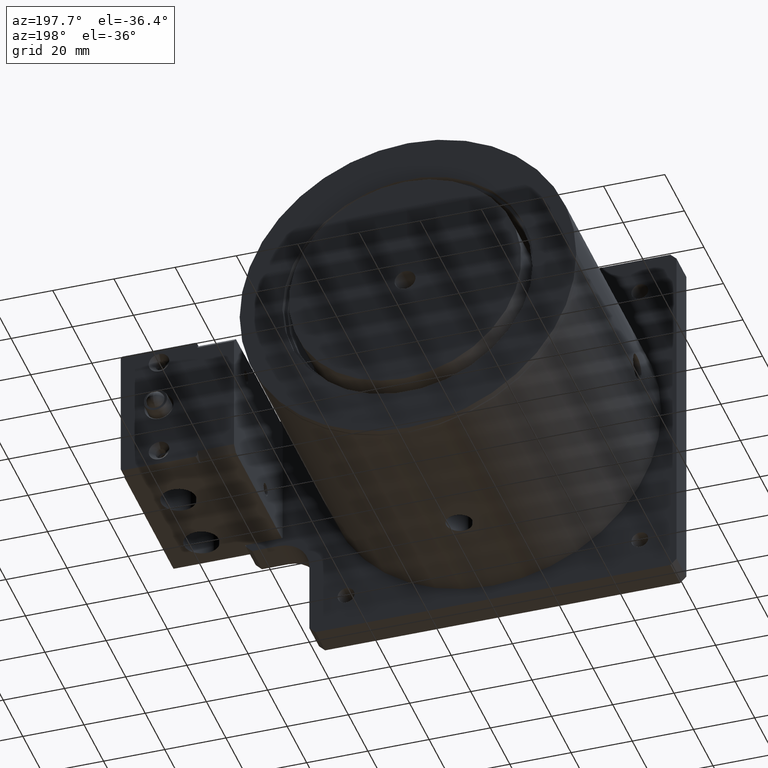
[diagram: clean part render]
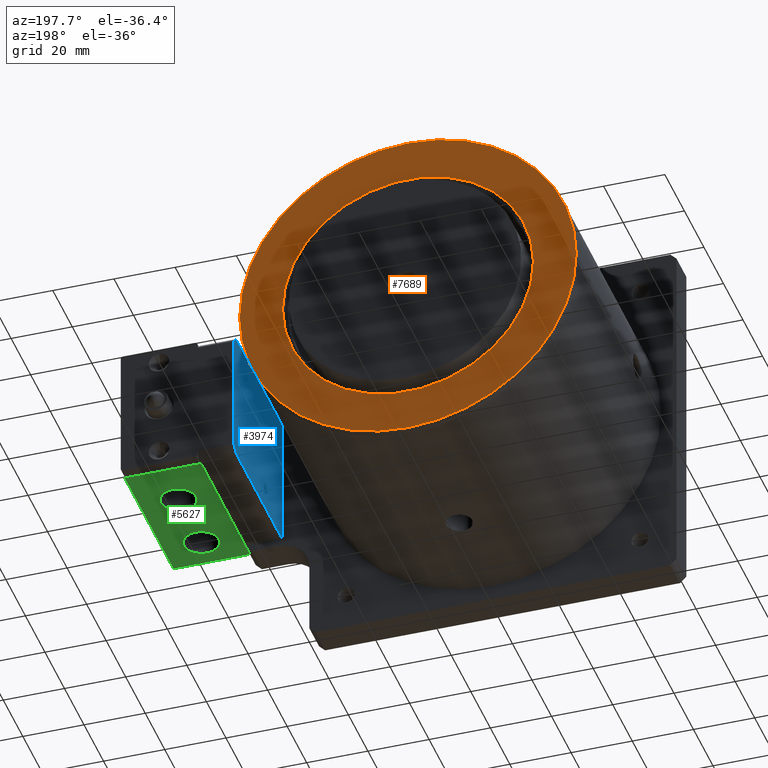
[diagram: same view with three faces highlighted in distinct colors, each labeled with its STEP entity id]
A machine part, auxiliary view with three faces highlighted in distinct colors.
Their STEP definitions:

[orange] entity #7689 — the highlighted planar face has unit normal (0, 1, 0).
#7566=CARTESIAN_POINT('',(0.E0,0.E0,2.E0));
#7567=DIRECTION('',(0.E0,0.E0,-1.E0));
#7568=DIRECTION('',(1.E0,0.E0,0.E0));
#7569=AXIS2_PLACEMENT_3D('',#7566,#7567,#7568);
#7574=CARTESIAN_POINT('',(0.E0,0.E0,2.E0));
#7575=DIRECTION('',(0.E0,0.E0,-1.E0));
#7576=DIRECTION('',(-1.E0,0.E0,0.E0));
#7577=AXIS2_PLACEMENT_3D('',#7574,#7575,#7576);
#7582=CARTESIAN_POINT('',(0.E0,0.E0,2.E0));
#7583=DIRECTION('',(0.E0,0.E0,1.E0));
#7584=DIRECTION('',(1.E0,0.E0,0.E0));
#7585=AXIS2_PLACEMENT_3D('',#7582,#7583,#7584);
#7590=CARTESIAN_POINT('',(0.E0,0.E0,2.E0));
#7591=DIRECTION('',(0.E0,0.E0,1.E0));
#7592=DIRECTION('',(-1.E0,0.E0,0.E0));
#7593=AXIS2_PLACEMENT_3D('',#7590,#7591,#7592);
#7620=CARTESIAN_POINT('',(4.1E1,0.E0,2.E0));
#7621=CARTESIAN_POINT('',(-4.1E1,0.E0,2.E0));
#7622=VERTEX_POINT('',#7620);
#7623=VERTEX_POINT('',#7621);
#7624=CARTESIAN_POINT('',(5.5E1,0.E0,2.E0));
#7625=CARTESIAN_POINT('',(-5.5E1,1.347111479062E-14,2.E0));
#7626=VERTEX_POINT('',#7624);
#7627=VERTEX_POINT('',#7625);
#7674=CARTESIAN_POINT('',(0.E0,0.E0,2.E0));
#7675=DIRECTION('',(0.E0,0.E0,1.E0));
#7676=DIRECTION('',(1.E0,0.E0,0.E0));
#7677=AXIS2_PLACEMENT_3D('',#7674,#7675,#7676);
#7678=PLANE('',#7677);
#7680=ORIENTED_EDGE('',*,*,#7679,.F.);
#7682=ORIENTED_EDGE('',*,*,#7681,.F.);
#7683=EDGE_LOOP('',(#7680,#7682));
#7684=FACE_OUTER_BOUND('',#7683,.F.);
#7685=ORIENTED_EDGE('',*,*,#7654,.F.);
#7686=ORIENTED_EDGE('',*,*,#7668,.F.);
#7687=EDGE_LOOP('',(#7685,#7686));
#7688=FACE_BOUND('',#7687,.F.);
#7570=CIRCLE('',#7569,4.1E1);
#7578=CIRCLE('',#7577,4.1E1);
#7586=CIRCLE('',#7585,5.5E1);
#7594=CIRCLE('',#7593,5.5E1);
#7654=EDGE_CURVE('',#7622,#7623,#7570,.T.);
#7668=EDGE_CURVE('',#7623,#7622,#7578,.T.);
#7679=EDGE_CURVE('',#7626,#7627,#7586,.T.);
#7681=EDGE_CURVE('',#7627,#7626,#7594,.T.);
#7689=ADVANCED_FACE('',(#7684,#7688),#7678,.T.);

[blue] entity #3974 — the highlighted planar face has unit normal (-1, 0, 0).
#3461=CARTESIAN_POINT('',(1.25E1,-1.475E1,6.E0));
#3462=DIRECTION('',(0.E0,0.E0,1.E0));
#3463=DIRECTION('',(-1.E0,0.E0,0.E0));
#3464=AXIS2_PLACEMENT_3D('',#3461,#3462,#3463);
#3469=CARTESIAN_POINT('',(1.25E1,-1.475E1,6.E0));
#3470=DIRECTION('',(0.E0,0.E0,1.E0));
#3471=DIRECTION('',(1.E0,0.E0,0.E0));
#3472=AXIS2_PLACEMENT_3D('',#3469,#3470,#3471);
#3477=CARTESIAN_POINT('',(-7.5E0,1.475E1,6.E0));
#3478=DIRECTION('',(0.E0,0.E0,-1.E0));
#3479=DIRECTION('',(1.E0,0.E0,0.E0));
#3480=AXIS2_PLACEMENT_3D('',#3477,#3478,#3479);
#3485=CARTESIAN_POINT('',(-7.5E0,1.475E1,6.E0));
#3486=DIRECTION('',(0.E0,0.E0,-1.E0));
#3487=DIRECTION('',(-1.E0,0.E0,0.E0));
#3488=AXIS2_PLACEMENT_3D('',#3485,#3486,#3487);
#3493=DIRECTION('',(7.071067811865E-1,-7.071067811865E-1,0.E0));
#3494=VECTOR('',#3493,1.414213562373E0);
#3495=CARTESIAN_POINT('',(-2.5E1,-2.1E1,6.E0));
#3496=LINE('',#3495,#3494);
#3500=DIRECTION('',(0.E0,-1.E0,0.E0));
#3501=VECTOR('',#3500,4.2E1);
#3502=CARTESIAN_POINT('',(-2.5E1,2.1E1,6.E0));
#3503=LINE('',#3502,#3501);
#3507=DIRECTION('',(-7.071067811865E-1,-7.071067811865E-1,0.E0));
#3508=VECTOR('',#3507,1.414213562373E0);
#3509=CARTESIAN_POINT('',(-2.4E1,2.2E1,6.E0));
#3510=LINE('',#3509,#3508);
#3514=DIRECTION('',(-1.E0,0.E0,0.E0));
#3515=VECTOR('',#3514,4.7E1);
#3516=CARTESIAN_POINT('',(2.3E1,2.2E1,6.E0));
#3517=LINE('',#3516,#3515);
#3521=DIRECTION('',(-7.071067811865E-1,7.071067811865E-1,0.E0));
#3522=VECTOR('',#3521,2.828427124746E0);
#3523=CARTESIAN_POINT('',(2.5E1,2.E1,6.E0));
#3524=LINE('',#3523,#3522);
#3528=DIRECTION('',(0.E0,1.E0,0.E0));
#3529=VECTOR('',#3528,4.E1);
#3530=CARTESIAN_POINT('',(2.5E1,-2.E1,6.E0));
#3531=LINE('',#3530,#3529);
#3535=DIRECTION('',(7.071067811865E-1,7.071067811865E-1,0.E0));
#3536=VECTOR('',#3535,2.828427124746E0);
#3537=CARTESIAN_POINT('',(2.3E1,-2.2E1,6.E0));
#3538=LINE('',#3537,#3536);
#3542=DIRECTION('',(1.E0,0.E0,0.E0));
#3543=VECTOR('',#3542,4.7E1);
#3544=CARTESIAN_POINT('',(-2.4E1,-2.2E1,6.E0));
#3545=LINE('',#3544,#3543);
#3799=CARTESIAN_POINT('',(1.46E1,-1.475E1,6.E0));
#3801=VERTEX_POINT('',#3799);
#3803=CARTESIAN_POINT('',(1.04E1,-1.475E1,6.E0));
#3805=VERTEX_POINT('',#3803);
#3811=CARTESIAN_POINT('',(2.5E1,2.E1,6.E0));
#3812=VERTEX_POINT('',#3811);
#3813=CARTESIAN_POINT('',(2.3E1,2.2E1,6.E0));
#3814=VERTEX_POINT('',#3813);
#3817=CARTESIAN_POINT('',(2.5E1,-2.E1,6.E0));
#3818=VERTEX_POINT('',#3817);
#3821=CARTESIAN_POINT('',(2.3E1,-2.2E1,6.E0));
#3822=VERTEX_POINT('',#3821);
#3837=CARTESIAN_POINT('',(-5.4E0,1.475E1,6.E0));
#3838=CARTESIAN_POINT('',(-9.6E0,1.475E1,6.E0));
#3839=VERTEX_POINT('',#3837);
#3840=VERTEX_POINT('',#3838);
#3865=CARTESIAN_POINT('',(-2.5E1,-2.1E1,6.E0));
#3866=VERTEX_POINT('',#3865);
#3867=CARTESIAN_POINT('',(-2.4E1,-2.2E1,6.E0));
#3868=VERTEX_POINT('',#3867);
#3873=CARTESIAN_POINT('',(-2.4E1,2.2E1,6.E0));
#3874=VERTEX_POINT('',#3873);
#3875=CARTESIAN_POINT('',(-2.5E1,2.1E1,6.E0));
#3876=VERTEX_POINT('',#3875);
#3941=CARTESIAN_POINT('',(0.E0,0.E0,6.E0));
#3942=DIRECTION('',(0.E0,0.E0,1.E0));
#3943=DIRECTION('',(1.E0,0.E0,0.E0));
#3944=AXIS2_PLACEMENT_3D('',#3941,#3942,#3943);
#3945=PLANE('',#3944);
#3947=ORIENTED_EDGE('',*,*,#3946,.F.);
#3949=ORIENTED_EDGE('',*,*,#3948,.F.);
#3951=ORIENTED_EDGE('',*,*,#3950,.F.);
#3953=ORIENTED_EDGE('',*,*,#3952,.F.);
#3955=ORIENTED_EDGE('',*,*,#3954,.F.);
#3957=ORIENTED_EDGE('',*,*,#3956,.F.);
#3959=ORIENTED_EDGE('',*,*,#3958,.F.);
#3961=ORIENTED_EDGE('',*,*,#3960,.F.);
#3962=EDGE_LOOP('',(#3947,#3949,#3951,#3953,#3955,#3957,#3959,#3961));
#3963=FACE_OUTER_BOUND('',#3962,.F.);
#3965=ORIENTED_EDGE('',*,*,#3964,.F.);
#3967=ORIENTED_EDGE('',*,*,#3966,.F.);
#3968=EDGE_LOOP('',(#3965,#3967));
#3969=FACE_BOUND('',#3968,.F.);
#3970=ORIENTED_EDGE('',*,*,#3920,.T.);
#3971=ORIENTED_EDGE('',*,*,#3936,.T.);
#3972=EDGE_LOOP('',(#3970,#3971));
#3973=FACE_BOUND('',#3972,.F.);
#3465=CIRCLE('',#3464,2.1E0);
#3473=CIRCLE('',#3472,2.1E0);
#3481=CIRCLE('',#3480,2.1E0);
#3489=CIRCLE('',#3488,2.1E0);
#3920=EDGE_CURVE('',#3805,#3801,#3465,.T.);
#3936=EDGE_CURVE('',#3801,#3805,#3473,.T.);
#3946=EDGE_CURVE('',#3866,#3868,#3496,.T.);
#3948=EDGE_CURVE('',#3876,#3866,#3503,.T.);
#3950=EDGE_CURVE('',#3874,#3876,#3510,.T.);
#3952=EDGE_CURVE('',#3814,#3874,#3517,.T.);
#3954=EDGE_CURVE('',#3812,#3814,#3524,.T.);
#3956=EDGE_CURVE('',#3818,#3812,#3531,.T.);
#3958=EDGE_CURVE('',#3822,#3818,#3538,.T.);
#3960=EDGE_CURVE('',#3868,#3822,#3545,.T.);
#3964=EDGE_CURVE('',#3839,#3840,#3481,.T.);
#3966=EDGE_CURVE('',#3840,#3839,#3489,.T.);
#3974=ADVANCED_FACE('',(#3963,#3969,#3973),#3945,.T.);

[green] entity #5627 — the highlighted planar face has unit normal (0, 0, -1).
#4383=DIRECTION('',(-1.E0,0.E0,0.E0));
#4384=VECTOR('',#4383,2.5E1);
#4385=CARTESIAN_POINT('',(1.25E1,2.2E1,0.E0));
#4386=LINE('',#4385,#4384);
#4539=DIRECTION('',(0.E0,0.E0,-1.E0));
#4540=VECTOR('',#4539,5.E1);
#4541=CARTESIAN_POINT('',(1.25E1,2.2E1,0.E0));
#4542=LINE('',#4541,#4540);
#4546=CARTESIAN_POINT('',(0.E0,2.2E1,-1.05E1));
#4547=DIRECTION('',(0.E0,1.E0,0.E0));
#4548=DIRECTION('',(1.E0,0.E0,0.E0));
#4549=AXIS2_PLACEMENT_3D('',#4546,#4547,#4548);
#4554=CARTESIAN_POINT('',(0.E0,2.2E1,-1.05E1));
#4555=DIRECTION('',(0.E0,1.E0,0.E0));
#4556=DIRECTION('',(-1.E0,0.E0,0.E0));
#4557=AXIS2_PLACEMENT_3D('',#4554,#4555,#4556);
#4562=CARTESIAN_POINT('',(0.E0,2.2E1,-3.4E1));
#4563=DIRECTION('',(0.E0,1.E0,0.E0));
#4564=DIRECTION('',(1.E0,0.E0,0.E0));
#4565=AXIS2_PLACEMENT_3D('',#4562,#4563,#4564);
#4570=CARTESIAN_POINT('',(0.E0,2.2E1,-3.4E1));
#4571=DIRECTION('',(0.E0,1.E0,0.E0));
#4572=DIRECTION('',(-1.E0,0.E0,0.E0));
#4573=AXIS2_PLACEMENT_3D('',#4570,#4571,#4572);
#4578=DIRECTION('',(0.E0,0.E0,-1.E0));
#4579=VECTOR('',#4578,5.E1);
#4580=CARTESIAN_POINT('',(-1.25E1,2.2E1,0.E0));
#4581=LINE('',#4580,#4579);
#4631=DIRECTION('',(-1.E0,0.E0,0.E0));
#4632=VECTOR('',#4631,2.5E1);
#4633=CARTESIAN_POINT('',(1.25E1,2.2E1,-5.E1));
#4634=LINE('',#4633,#4632);
#5345=CARTESIAN_POINT('',(1.25E1,2.2E1,0.E0));
#5346=VERTEX_POINT('',#5345);
#5347=CARTESIAN_POINT('',(-1.25E1,2.2E1,0.E0));
#5348=VERTEX_POINT('',#5347);
#5353=CARTESIAN_POINT('',(1.25E1,2.2E1,-5.E1));
#5354=VERTEX_POINT('',#5353);
#5355=CARTESIAN_POINT('',(-1.25E1,2.2E1,-5.E1));
#5356=VERTEX_POINT('',#5355);
#5389=CARTESIAN_POINT('',(5.7225E0,2.2E1,-1.05E1));
#5390=CARTESIAN_POINT('',(-5.7225E0,2.2E1,-1.05E1));
#5391=VERTEX_POINT('',#5389);
#5392=VERTEX_POINT('',#5390);
#5403=CARTESIAN_POINT('',(5.7225E0,2.2E1,-3.4E1));
#5404=CARTESIAN_POINT('',(-5.7225E0,2.2E1,-3.4E1));
#5405=VERTEX_POINT('',#5403);
#5406=VERTEX_POINT('',#5404);
#5602=CARTESIAN_POINT('',(1.25E1,2.2E1,0.E0));
#5603=DIRECTION('',(0.E0,1.E0,0.E0));
#5604=DIRECTION('',(-1.E0,0.E0,0.E0));
#5605=AXIS2_PLACEMENT_3D('',#5602,#5603,#5604);
#5606=PLANE('',#5605);
#5607=ORIENTED_EDGE('',*,*,#5519,.T.);
#5609=ORIENTED_EDGE('',*,*,#5608,.T.);
#5611=ORIENTED_EDGE('',*,*,#5610,.F.);
#5612=ORIENTED_EDGE('',*,*,#5582,.F.);
#5613=EDGE_LOOP('',(#5607,#5609,#5611,#5612));
#5614=FACE_OUTER_BOUND('',#5613,.F.);
#5616=ORIENTED_EDGE('',*,*,#5615,.T.);
#5618=ORIENTED_EDGE('',*,*,#5617,.T.);
#5619=EDGE_LOOP('',(#5616,#5618));
#5620=FACE_BOUND('',#5619,.F.);
#5622=ORIENTED_EDGE('',*,*,#5621,.T.);
#5624=ORIENTED_EDGE('',*,*,#5623,.T.);
#5625=EDGE_LOOP('',(#5622,#5624));
#5626=FACE_BOUND('',#5625,.F.);
#4550=CIRCLE('',#4549,5.7225E0);
#4558=CIRCLE('',#4557,5.7225E0);
#4566=CIRCLE('',#4565,5.7225E0);
#4574=CIRCLE('',#4573,5.7225E0);
#5519=EDGE_CURVE('',#5346,#5348,#4386,.T.);
#5582=EDGE_CURVE('',#5346,#5354,#4542,.T.);
#5608=EDGE_CURVE('',#5348,#5356,#4581,.T.);
#5610=EDGE_CURVE('',#5354,#5356,#4634,.T.);
#5615=EDGE_CURVE('',#5391,#5392,#4550,.T.);
#5617=EDGE_CURVE('',#5392,#5391,#4558,.T.);
#5621=EDGE_CURVE('',#5405,#5406,#4566,.T.);
#5623=EDGE_CURVE('',#5406,#5405,#4574,.T.);
#5627=ADVANCED_FACE('',(#5614,#5620,#5626),#5606,.T.);